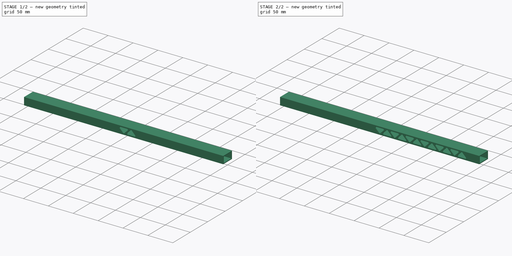
[diagram: build sequence overview — one tinted view per stage of 2, left to right]
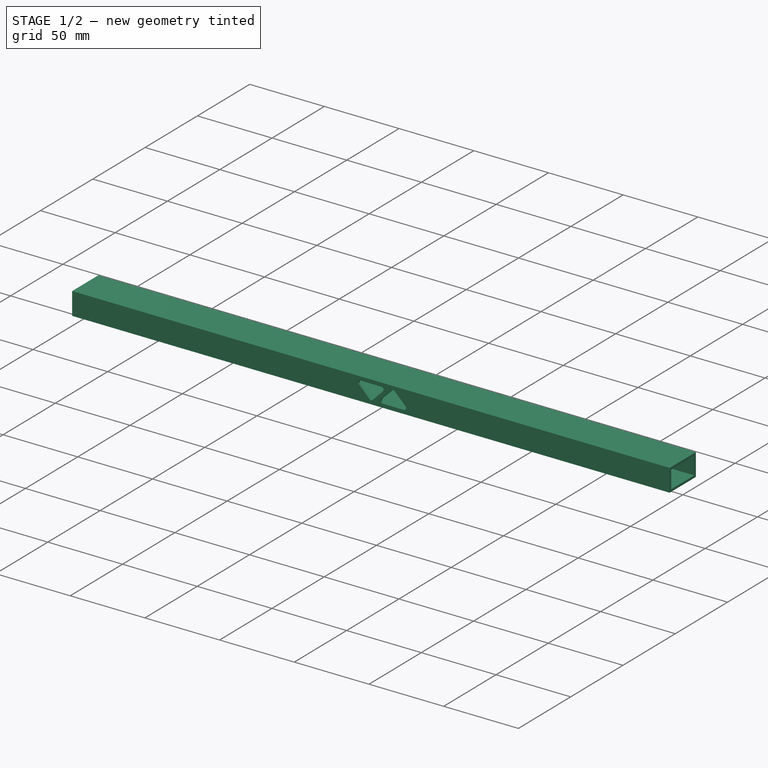
[diagram: stage 1 of 2 — iso view after this stage's code; geometry added in this stage tinted green]
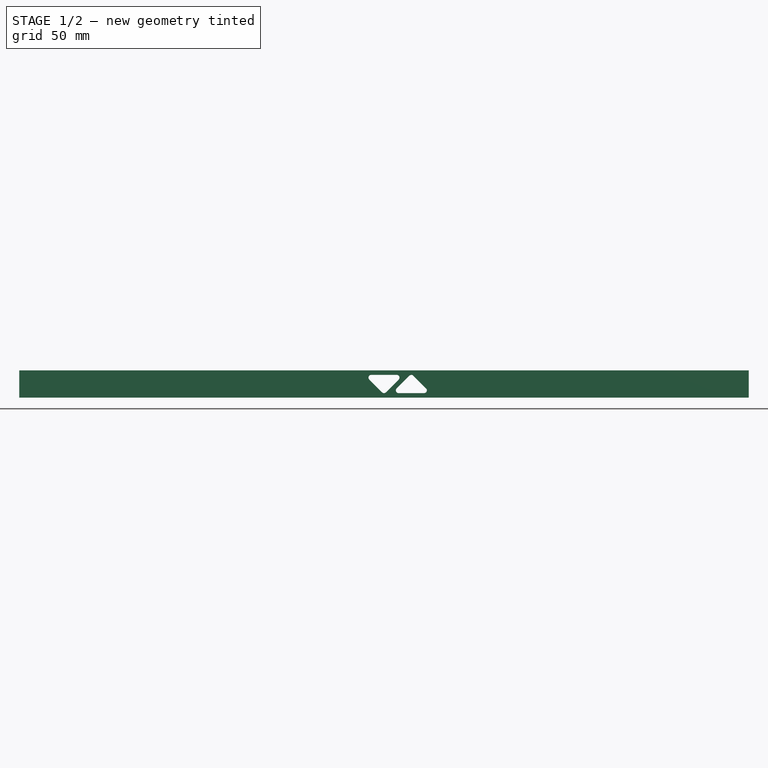
[diagram: stage 1 of 2 — front view after this stage's code; geometry added in this stage tinted green]
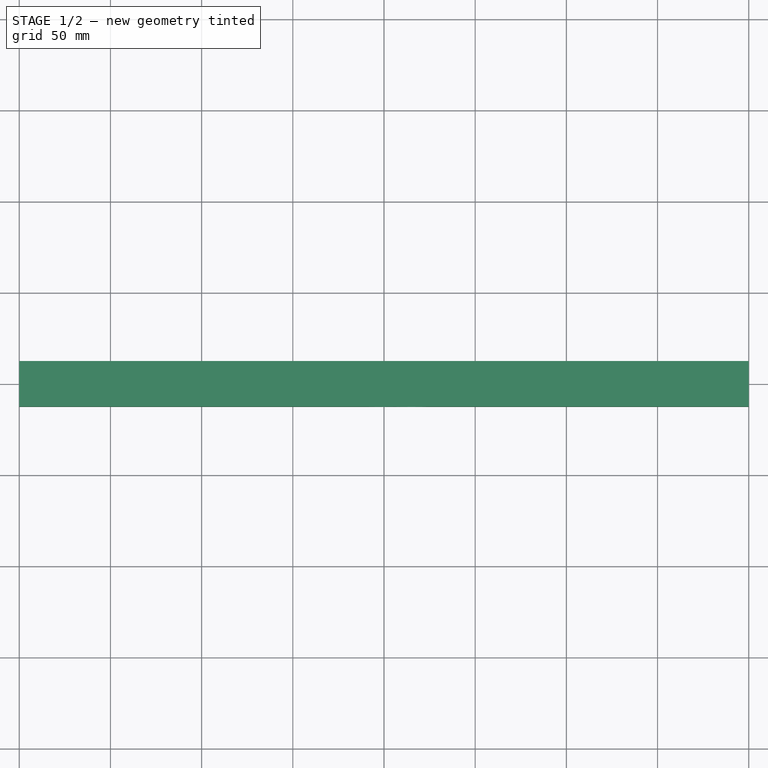
[diagram: stage 1 of 2 — top view after this stage's code; geometry added in this stage tinted green]
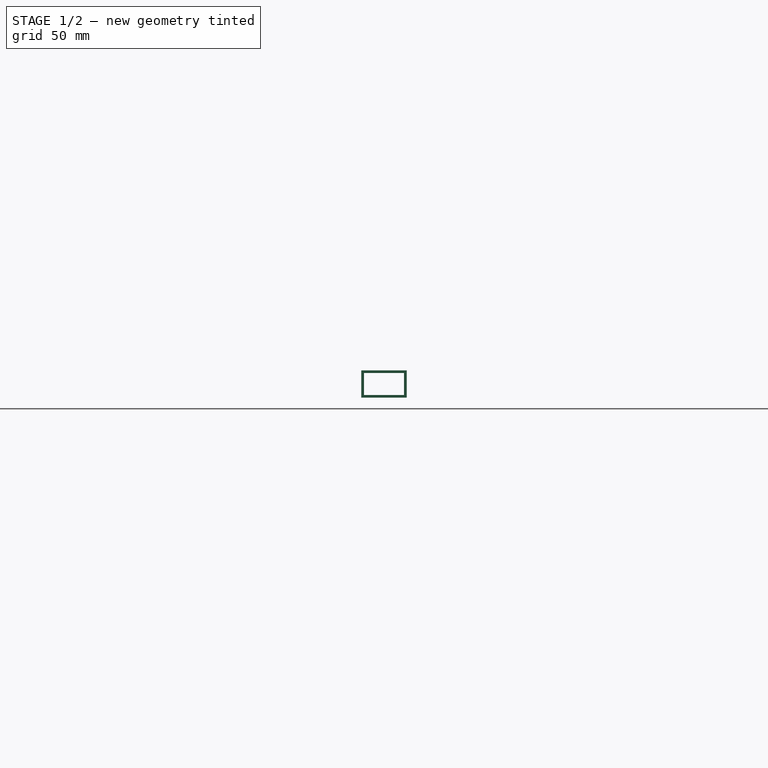
[diagram: stage 1 of 2 — right view after this stage's code; geometry added in this stage tinted green]
FCSTD DOCUMENT  (FreeCAD 0.20R)
Label: x_beam_base_pipe
License: All rights reserved
LicenseURL: http://en.wikipedia.org/wiki/All_rights_reserved
objects: Sketcher::SketchObject×2, PartDesign::Pad×1, PartDesign::Pocket×1, PartDesign::LinearPattern×1, PartDesign::Body×1, Spreadsheet::Sheet×1
note: 8 computed .brp shape members not serialized (recipe doc carries the construction recipe); baked Part::Feature solids carry a one-line shape summary decoded from their .brp

FEATURE [Sketcher::SketchObject] Sketch
  FullyConstrained = true
  MapMode = 5
  Placement = pos=(0,0,0) rot=(0.57735,0.57735,0.57735;2.0944rad)
  Support = -> [YZ_Plane]
  sketch-geometry (8):
    g0: LineSegment StartX=-12.5 StartY=7.5 StartZ=0 EndX=12.5 EndY=7.5 EndZ=0
    g1: LineSegment StartX=12.5 StartY=7.5 StartZ=0 EndX=12.5 EndY=-7.5 EndZ=0
    g2: LineSegment StartX=12.5 StartY=-7.5 StartZ=0 EndX=-12.5 EndY=-7.5 EndZ=0
    g3: LineSegment StartX=-12.5 StartY=-7.5 StartZ=0 EndX=-12.5 EndY=7.5 EndZ=0
    g4: LineSegment StartX=-11 StartY=-6 StartZ=0 EndX=11 EndY=-6 EndZ=0
    g5: LineSegment StartX=11 StartY=-6 StartZ=0 EndX=11 EndY=6 EndZ=0
    g6: LineSegment StartX=11 StartY=6 StartZ=0 EndX=-11 EndY=6 EndZ=0
    g7: LineSegment StartX=-11 StartY=6 StartZ=0 EndX=-11 EndY=-6 EndZ=0
  constraints (22):
    c: Coincident(g0,g1)
    c: Coincident(g1,g2)
    c: Coincident(g2,g3)
    c: Coincident(g3,g0)
    c: Horizontal(g0)
    c: Horizontal(g2)
    c: Vertical(g1)
    c: Vertical(g3)
    c: Symmetric(g0,g2,g-1)
    c: Distance(g0) = 25
    c: Distance(g1) = 15
    c: Coincident(g4,g5)
    c: Coincident(g5,g6)
    c: Coincident(g6,g7)
    c: Coincident(g7,g4)
    c: Horizontal(g4)
    c: Horizontal(g6)
    c: Vertical(g5)
    c: Vertical(g7)
    c: Symmetric(g5,g4,g-1)
    c: DistanceY(g6,g0) = 1.5
    c: DistanceX(g2,g4) = 1.5
FEATURE [PartDesign::Pad] Pad
  Direction = (1,-2e-16,3e-16)
  Length = 400
  Length2 = 10
  Midplane = true
  Placement = pos=(0,0,0) rot=(0.57735,0.57735,0.57735;2.0944rad)
  Profile = -> Sketch
  ReferenceAxis = -> Sketch [N_Axis]
  Type = 0
FEATURE [Sketcher::SketchObject] Sketch001
  ExternalGeometry = -> [Pad]
  FullyConstrained = true
  MapMode = 5
  Placement = pos=(-5.6e-15,-12.5,4.2e-15) rot=(-0.57735,-0.57735,0.57735;4.18879rad)
  Support = -> [Pad]
  sketch-geometry (12):
    g0: LineSegment StartX=-5 StartY=7 StartZ=0 EndX=-5 EndY=-7 EndZ=0
    g1: LineSegment StartX=4.56066 StartY=-1.06066 StartZ=0 EndX=-2.43934 EndY=-8.06066 EndZ=0
    g2: LineSegment StartX=4.56066 StartY=1.06066 StartZ=0 EndX=-2.43934 EndY=8.06066 EndZ=0
    g3: ArcOfCircle CenterX=3.5 CenterY=-2.6269e-12 CenterZ=0 NormalX=0 NormalY=0 NormalZ=1 AngleXU=0 Radius=1.5 StartAngle=5.49779 EndAngle=7.06858
    g4: ArcOfCircle CenterX=-3.5 CenterY=7 CenterZ=0 NormalX=0 NormalY=0 NormalZ=1 AngleXU=0 Radius=1.5 StartAngle=0.785398 EndAngle=3.14159
    g5: ArcOfCircle CenterX=-3.5 CenterY=-7 CenterZ=0 NormalX=0 NormalY=0 NormalZ=1 AngleXU=0 Radius=1.5 StartAngle=3.14159 EndAngle=5.49779
    g6: LineSegment StartX=-4.56066 StartY=13.9393 StartZ=0 EndX=2.43934 EndY=6.93934 EndZ=0
    g7: LineSegment StartX=5 StartY=22 StartZ=0 EndX=5 EndY=8 EndZ=0
    g8: LineSegment StartX=2.43934 StartY=23.0607 StartZ=0 EndX=-4.56066 EndY=16.0607 EndZ=0
    g9: ArcOfCircle CenterX=-3.5 CenterY=15 CenterZ=0 NormalX=0 NormalY=0 NormalZ=1 AngleXU=0 Radius=1.5 StartAngle=2.35619 EndAngle=3.92699
    g10: ArcOfCircle CenterX=3.5 CenterY=8 CenterZ=0 NormalX=0 NormalY=0 NormalZ=1 AngleXU=0 Radius=1.5 StartAngle=3.92699 EndAngle=6.28319
    g11: ArcOfCircle CenterX=3.5 CenterY=22 CenterZ=0 NormalX=0 NormalY=0 NormalZ=1 AngleXU=0 Radius=1.5 StartAngle=0 EndAngle=2.35619
  constraints (30):
    c: Tangent(g1,g3) = 1.5708
    c: Tangent(g2,g3) = -1.5708
    c: Radius(g3) = 1.5
    c: Angle(g2,g-1) = 0.785398
    c: Tangent(g2,g4) = -1.5708
    c: Tangent(g0,g4) = -1.5708
    c: Tangent(g0,g5) = -1.5708
    c: Tangent(g1,g5) = 1.5708
    c: Equal(g4,g5)
    c: Equal(g4,g3)
    c: Symmetric(g0,g0,g-1)
    c: Distance(g0,g-5) = 2.5
    c: Equal(g2,g1)
    c: Vertical(g7)
    c: Tangent(g8,g9) = -1.5708
    c: Tangent(g6,g9) = -1.5708
    c: Tangent(g6,g10) = -1.5708
    c: Tangent(g7,g10) = 1.5708
    c: Tangent(g7,g11) = 1.5708
    c: Tangent(g8,g11) = -1.5708
    c: Equal(g11,g10)
    c: Equal(g10,g9)
    c: Equal(g6,g8)
    c: Equal(g6,g2)
    c: Tangent(g9,g0)
    c: Distance(g7,g-6) = 2.5
    c: Tangent(g7,g3)
    c: Parallel(g6,g2)
    c: Distance(g6,g2) = 2.65685
    c: DistanceY(g3,g9) = 15
FEATURE [PartDesign::Pocket] Pocket
  BaseFeature = -> Pad
  Direction = (4e-16,1,-2e-16)
  Length = 5
  Length2 = 5
  Placement = pos=(0,0,0) rot=(0.57735,0.57735,0.57735;2.0944rad)
  Profile = -> Sketch001
  ReferenceAxis = -> Sketch001 [N_Axis]
  Type = 1
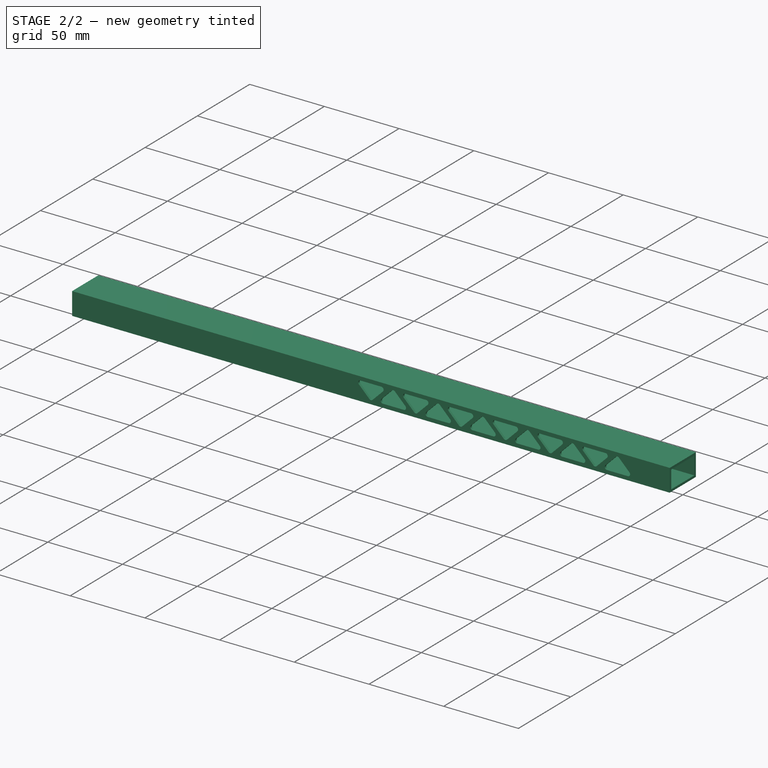
[diagram: stage 2 of 2 — iso view after this stage's code; geometry added in this stage tinted green]
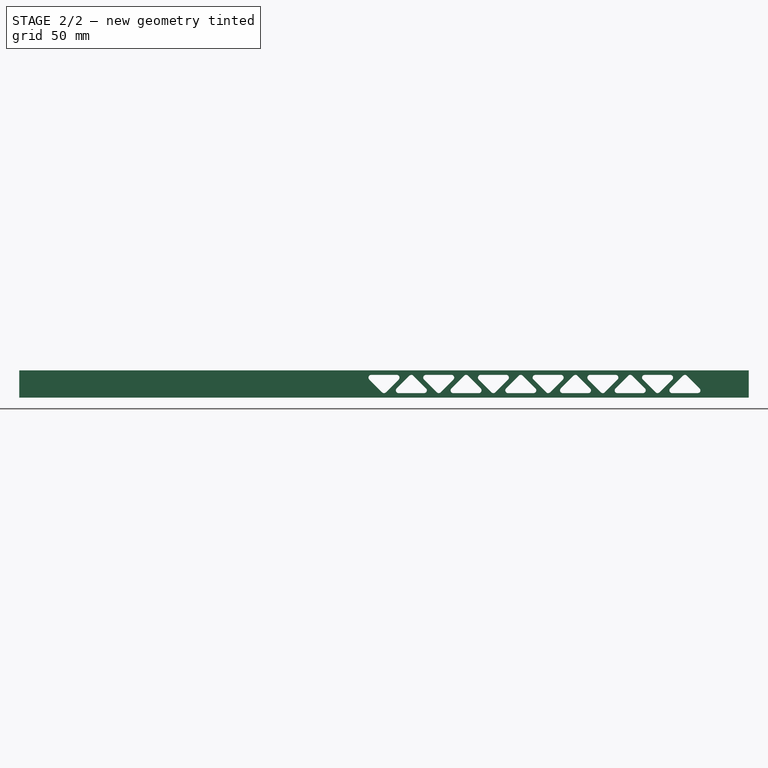
[diagram: stage 2 of 2 — front view after this stage's code; geometry added in this stage tinted green]
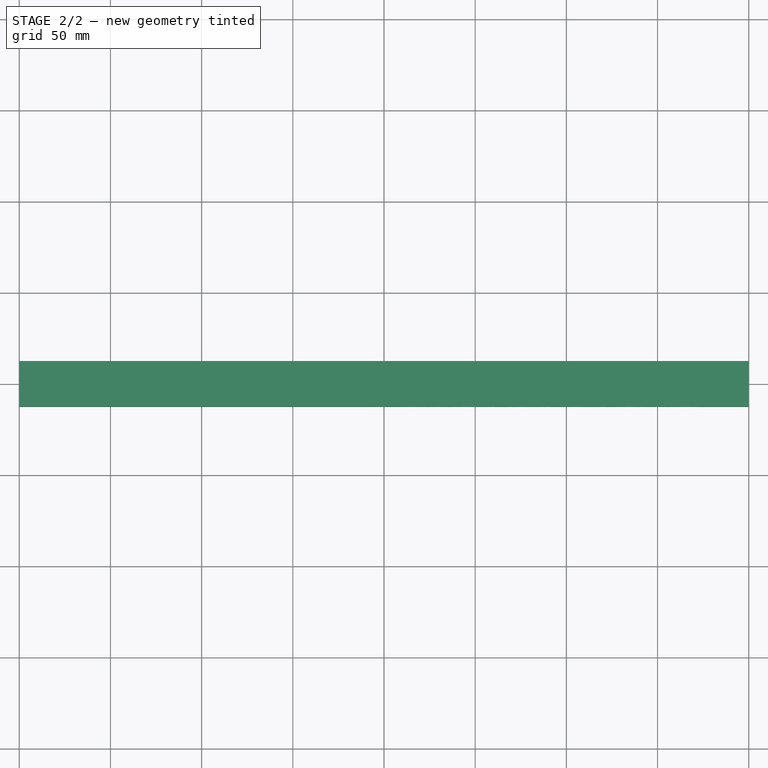
[diagram: stage 2 of 2 — top view after this stage's code; geometry added in this stage tinted green]
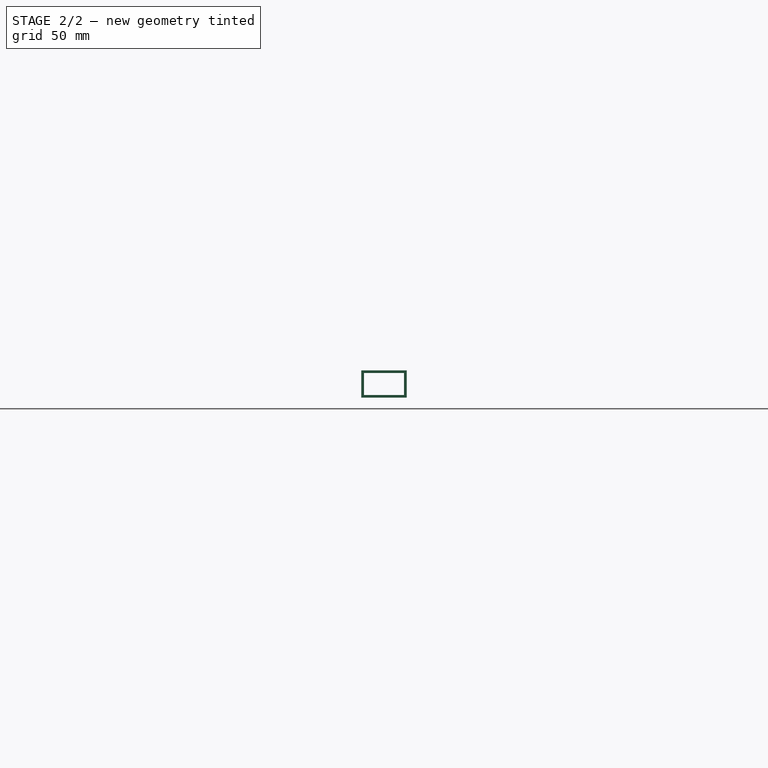
[diagram: stage 2 of 2 — right view after this stage's code; geometry added in this stage tinted green]
FEATURE [PartDesign::LinearPattern] LinearPattern
  BaseFeature = -> Pocket
  Direction = -> X_Axis
  Length = 150
  Occurrences = 6
  Originals = -> [Pocket]
  Placement = pos=(0,0,0) rot=(0.57735,0.57735,0.57735;2.0944rad)
FEATURE [PartDesign::Body] Body
  Group = -> [Sketch,Pad,Sketch001,Pocket,LinearPattern]
  Origin = -> Origin
  Tip = -> LinearPattern
FEATURE [Spreadsheet::Sheet] Spreadsheet
  cells = A1=PipeWidth; B1==25mm; A2=PipeHeight; B2==15mm; A3=PipeThickness; B3==1.5mm; A4=Braceangle; B4==45deg; A5=BracePitch; B5==30mm; A6=EdgeWidth; B6==2.5mm; A7=FilletRadius; B7==1.5mm
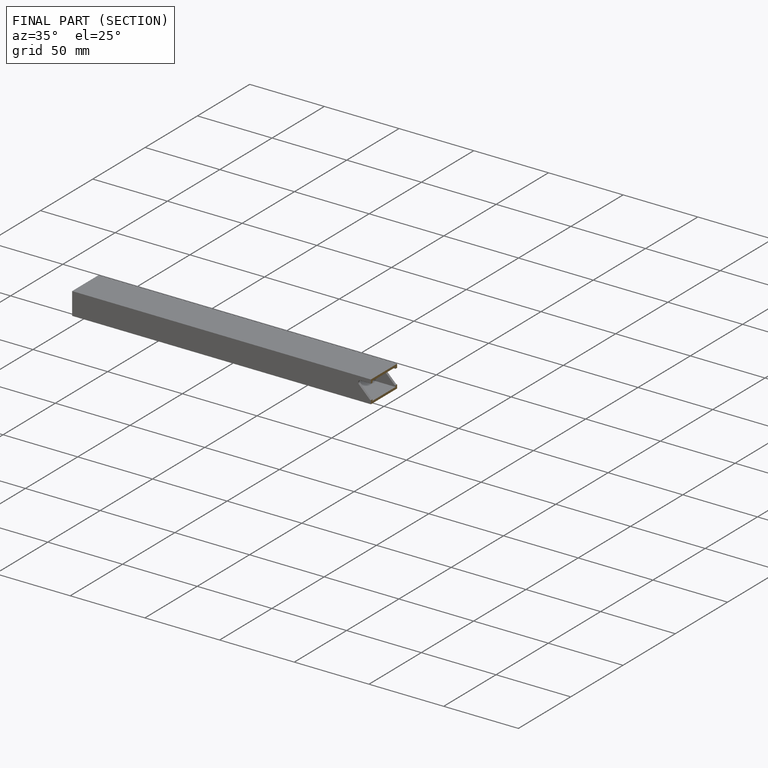
[diagram: finished part — half-section view (interior)]
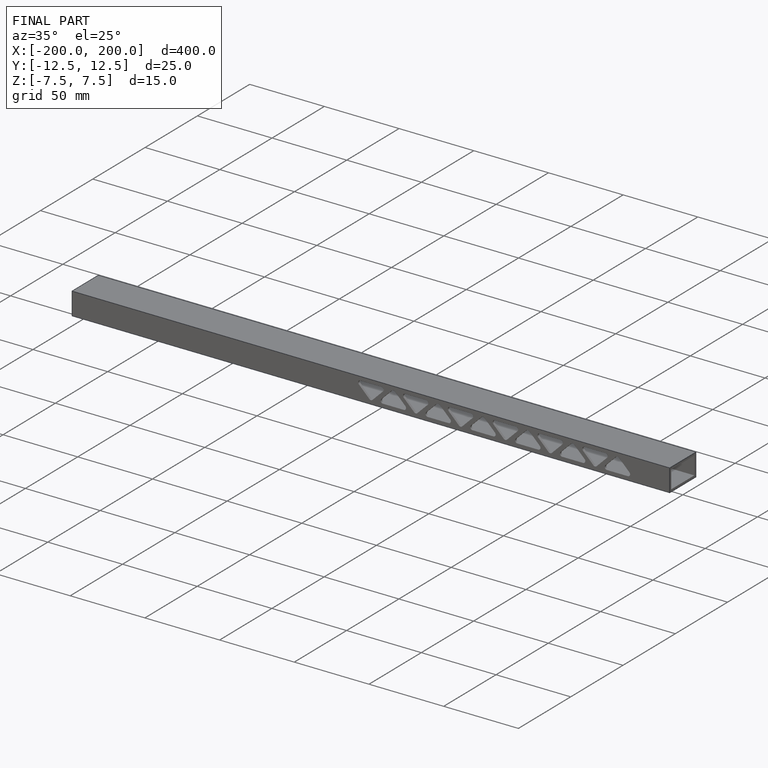
[diagram: finished part — iso view with bounding-box wireframe]
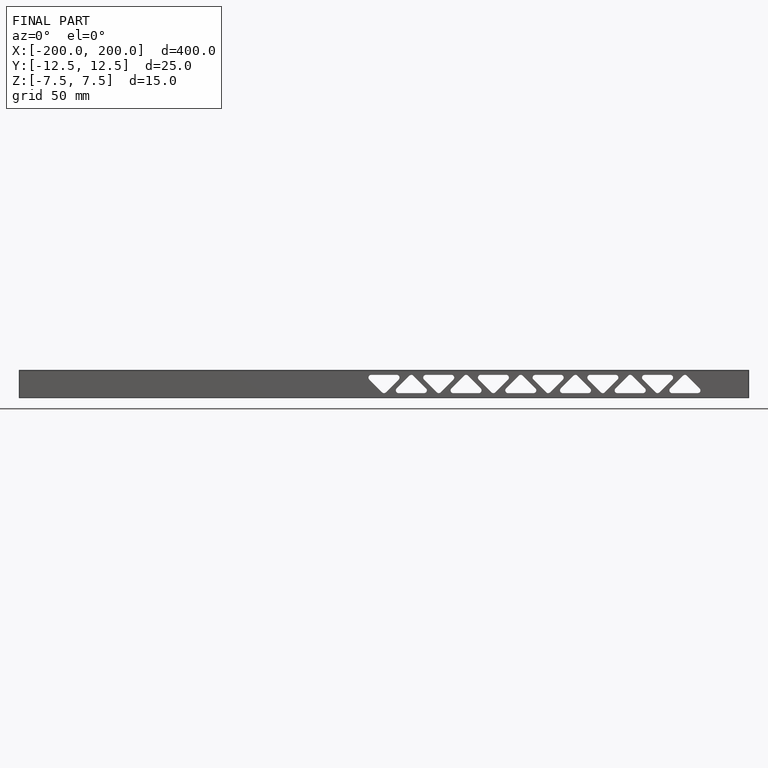
[diagram: finished part — front view with bounding-box wireframe]
